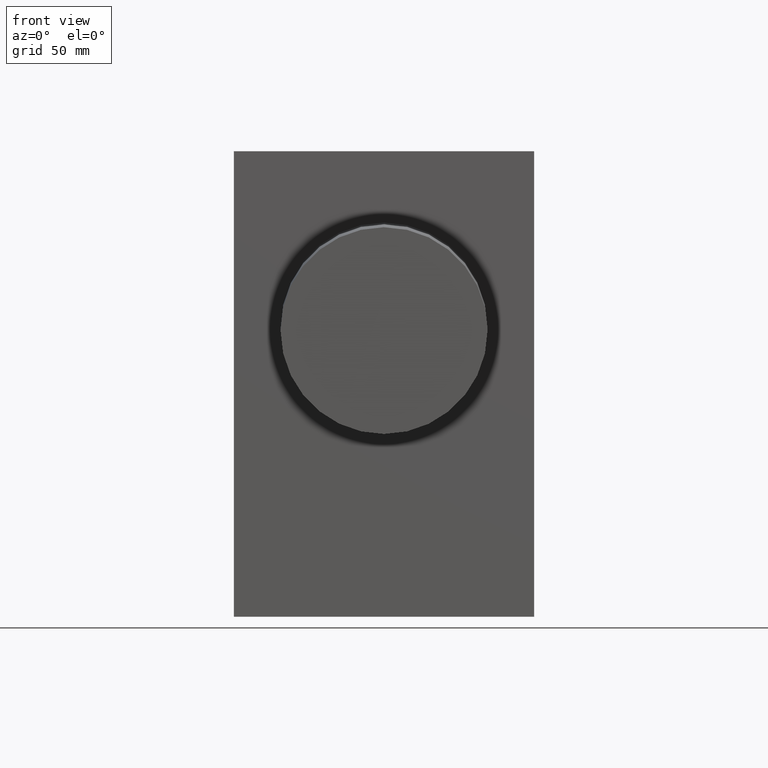
[diagram: clean part render]
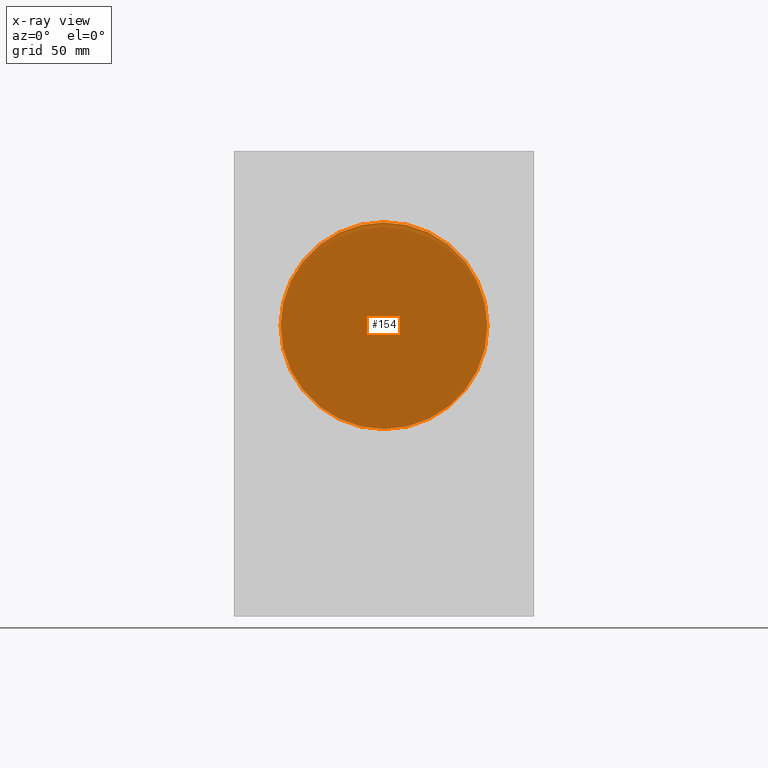
[diagram: x-ray — body ghosted, one internal face saturated and labeled with its STEP entity id]
A machine part, front view, then the same camera in x-ray: the body is ghosted and one INTERNAL B-rep face — a face not visible from any outside direction — is saturated and labeled: STEP entity #154.
In plain terms, the highlighted planar face has unit normal (0, 0.9997, 0.0262).
Its self-contained STEP definition (entity closure, byte-faithful):
#13=CIRCLE('',#183,44.45);
#15=CIRCLE('',#186,44.45);
#32=FACE_OUTER_BOUND('',#42,.T.);
#42=EDGE_LOOP('',(#135,#136));
#79=VERTEX_POINT('',#262);
#80=VERTEX_POINT('',#263);
#95=EDGE_CURVE('',#79,#80,#13,.T.);
#99=EDGE_CURVE('',#80,#79,#15,.T.);
#135=ORIENTED_EDGE('',*,*,#99,.T.);
#136=ORIENTED_EDGE('',*,*,#95,.T.);
#144=PLANE('',#189);
#154=ADVANCED_FACE('',(#32),#144,.T.);
#183=AXIS2_PLACEMENT_3D('',#264,#218,#219);
#186=AXIS2_PLACEMENT_3D('',#271,#226,#227);
#189=AXIS2_PLACEMENT_3D('',#274,#232,#233);
#218=DIRECTION('center_axis',(0.,0.999657324975557,0.0261769483078731));
#219=DIRECTION('ref_axis',(-1.61554457443259E-15,-0.026176948307873,0.999657324975557));
#226=DIRECTION('center_axis',(0.,0.999657324975557,0.0261769483078731));
#227=DIRECTION('ref_axis',(-1.61554457443259E-15,-0.026176948307873,0.999657324975557));
#232=DIRECTION('center_axis',(0.,0.999657324975557,0.0261769483078731));
#233=DIRECTION('ref_axis',(1.,0.,0.));
#262=CARTESIAN_POINT('',(-2.47764294578443E-13,-60.6361419530021,-30.5652319048219));
#263=CARTESIAN_POINT('',(1.43621912667057E-13,-58.3090112484321,-119.434768095149));
#264=CARTESIAN_POINT('Origin',(7.18109563335285E-14,-59.4725766007171,-74.9999999999854));
#271=CARTESIAN_POINT('Origin',(7.18109563335285E-14,-59.4725766007171,-74.9999999999854));
#274=CARTESIAN_POINT('Origin',(0.,-60.6361419530021,-30.5652319048219));